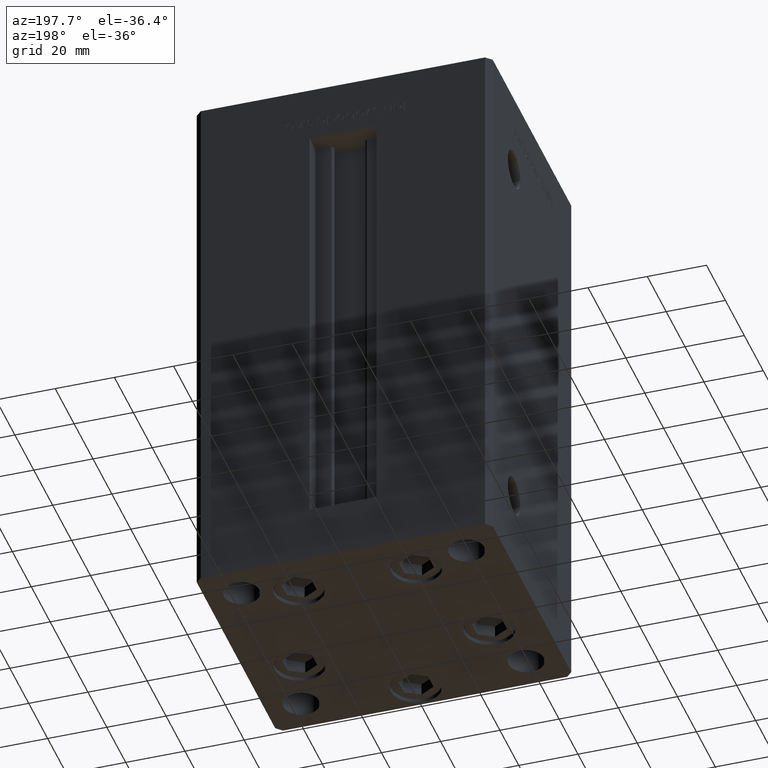
[diagram: clean part render]
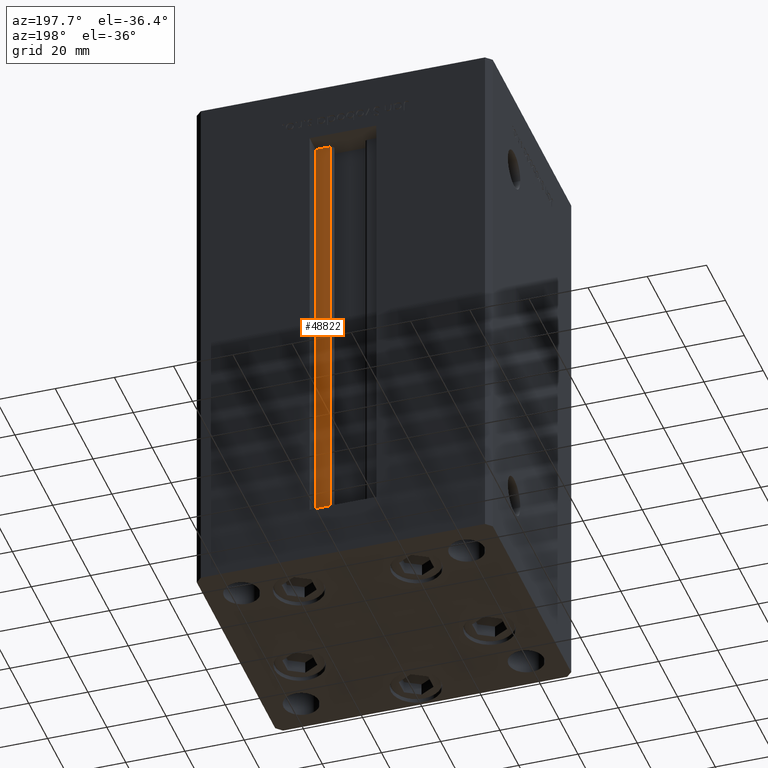
[diagram: same view with one face highlighted and labeled with its STEP entity id]
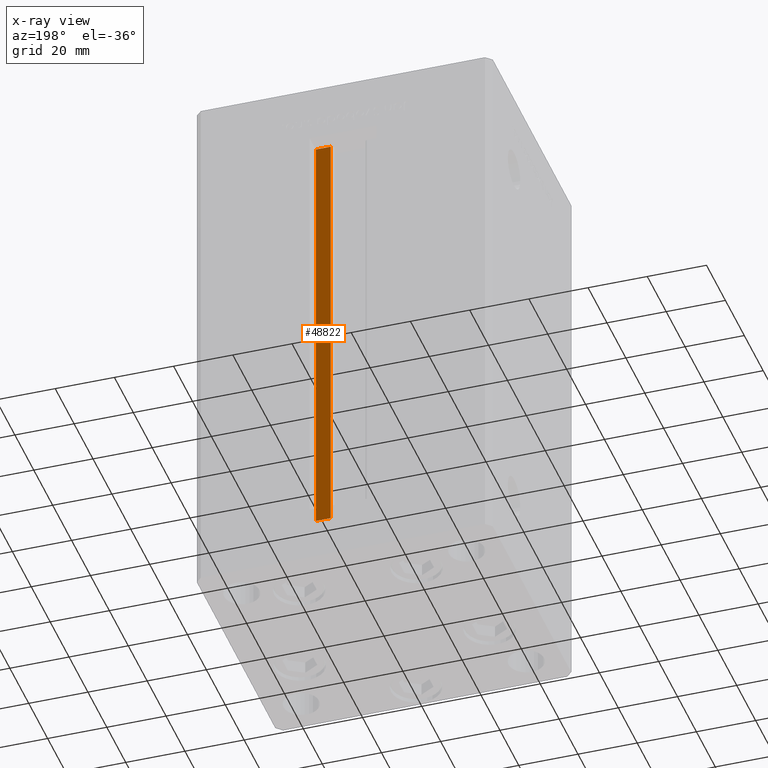
[diagram: x-ray of the same camera — body ghosted, the highlighted face saturated]
A machine part, auxiliary view. The second image highlights one B-rep face of the part: STEP entity #48822.
The next image is the same camera in x-ray: the body ghosted, the highlighted face saturated — about 0% of this face is hidden behind the body in this view.
In plain terms, the highlighted planar face has unit normal (0, -1, 0).
Its self-contained STEP definition (entity closure, byte-faithful):
#247 = DIRECTION ( 'NONE',  ( -0.000000000000000000, -0.000000000000000000, 1.000000000000000000 ) ) ;
#315 = LINE ( 'NONE', #839, #29630 ) ;
#839 = CARTESIAN_POINT ( 'NONE',  ( 0.000000000000000000, 36.99999999999999289, 148.5000000000000000 ) ) ;
#2163 = VERTEX_POINT ( 'NONE', #3416 ) ;
#3416 = CARTESIAN_POINT ( 'NONE',  ( 11.24999999999999822, 36.99999999999999289, 0.000000000000000000 ) ) ;
#4120 = DIRECTION ( 'NONE',  ( -0.000000000000000000, -0.000000000000000000, 1.000000000000000000 ) ) ;
#5670 = AXIS2_PLACEMENT_3D ( 'NONE', #23774, #27971, #43973 ) ;
#9026 = CARTESIAN_POINT ( 'NONE',  ( 6.183333333333997928, 36.99999999999999289, 0.000000000000000000 ) ) ;
#9596 = EDGE_CURVE ( 'NONE', #28956, #2163, #32374, .T. ) ;
#9601 = ORIENTED_EDGE ( 'NONE', *, *, #22983, .T. ) ;
#12458 = ORIENTED_EDGE ( 'NONE', *, *, #19058, .F. ) ;
#12960 = DIRECTION ( 'NONE',  ( 1.000000000000000000, 0.000000000000000000, 0.000000000000000000 ) ) ;
#13497 = EDGE_CURVE ( 'NONE', #44504, #18000, #315, .T. ) ;
#14543 = CARTESIAN_POINT ( 'NONE',  ( 6.183333333333997928, 36.99999999999999289, 0.000000000000000000 ) ) ;
#16854 = DIRECTION ( 'NONE',  ( -1.000000000000000000, 0.000000000000000000, 0.000000000000000000 ) ) ;
#18000 = VERTEX_POINT ( 'NONE', #33749 ) ;
#18083 = ORIENTED_EDGE ( 'NONE', *, *, #13497, .F. ) ;
#19058 = EDGE_CURVE ( 'NONE', #2163, #44504, #37175, .T. ) ;
#20099 = FACE_OUTER_BOUND ( 'NONE', #43109, .T. ) ;
#20211 = LINE ( 'NONE', #32543, #28662 ) ;
#22983 = EDGE_CURVE ( 'NONE', #28956, #18000, #20211, .T. ) ;
#23774 = CARTESIAN_POINT ( 'NONE',  ( 6.183333333333997928, 36.99999999999999289, 0.000000000000000000 ) ) ;
#25624 = VECTOR ( 'NONE', #4120, 1000.000000000000000 ) ;
#27971 = DIRECTION ( 'NONE',  ( 0.000000000000000000, -1.000000000000000000, 0.000000000000000000 ) ) ;
#28662 = VECTOR ( 'NONE', #247, 1000.000000000000000 ) ;
#28956 = VERTEX_POINT ( 'NONE', #14543 ) ;
#29630 = VECTOR ( 'NONE', #16854, 1000.000000000000000 ) ;
#32374 = LINE ( 'NONE', #9026, #49784 ) ;
#32543 = CARTESIAN_POINT ( 'NONE',  ( 6.183333333333997928, 36.99999999999999289, 0.000000000000000000 ) ) ;
#32749 = ORIENTED_EDGE ( 'NONE', *, *, #9596, .F. ) ;
#33749 = CARTESIAN_POINT ( 'NONE',  ( 6.183333333333997928, 36.99999999999999289, 148.5000000000000000 ) ) ;
#35598 = PLANE ( 'NONE',  #5670 ) ;
#37175 = LINE ( 'NONE', #44264, #25624 ) ;
#43109 = EDGE_LOOP ( 'NONE', ( #12458, #32749, #9601, #18083 ) ) ;
#43973 = DIRECTION ( 'NONE',  ( 0.000000000000000000, -0.000000000000000000, -1.000000000000000000 ) ) ;
#44264 = CARTESIAN_POINT ( 'NONE',  ( 11.24999999999999822, 36.99999999999999289, 0.000000000000000000 ) ) ;
#44504 = VERTEX_POINT ( 'NONE', #45541 ) ;
#45541 = CARTESIAN_POINT ( 'NONE',  ( 11.24999999999999822, 36.99999999999999289, 148.5000000000000000 ) ) ;
#48822 = ADVANCED_FACE ( 'NONE', ( #20099 ), #35598, .F. ) ;
#49784 = VECTOR ( 'NONE', #12960, 1000.000000000000000 ) ;